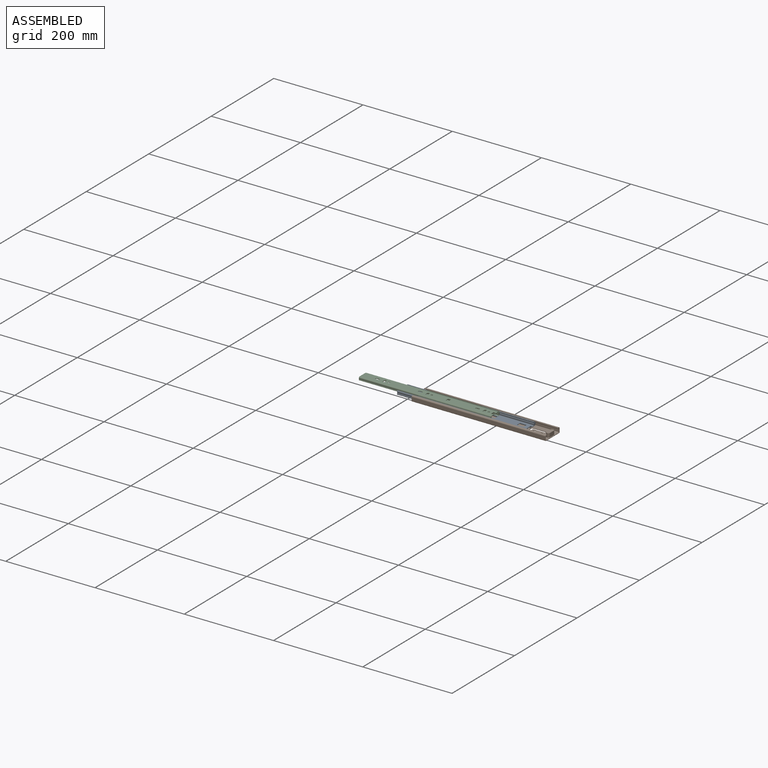
[diagram: assembled view]
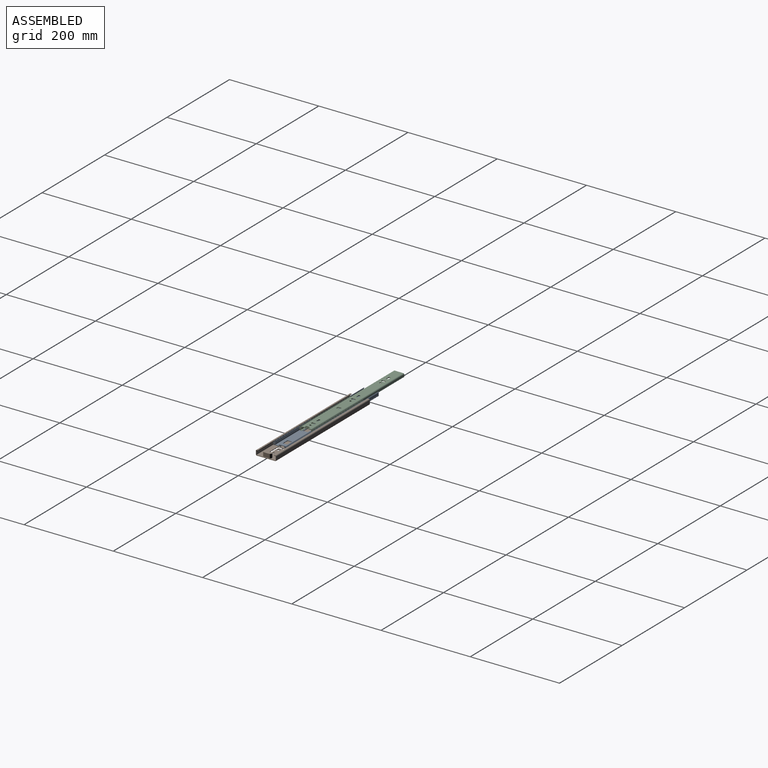
[diagram: assembled view, second angle]
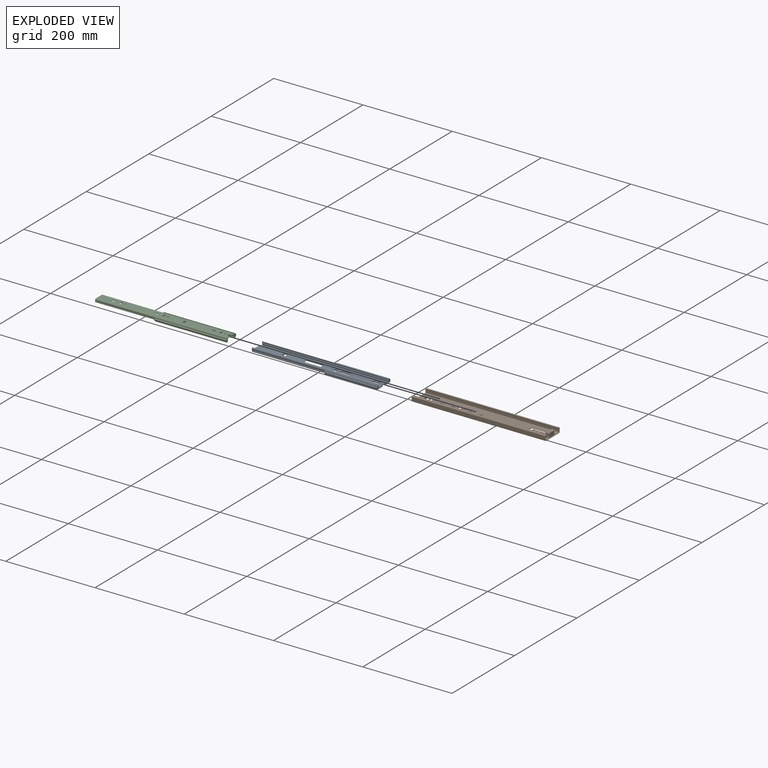
[diagram: exploded view]
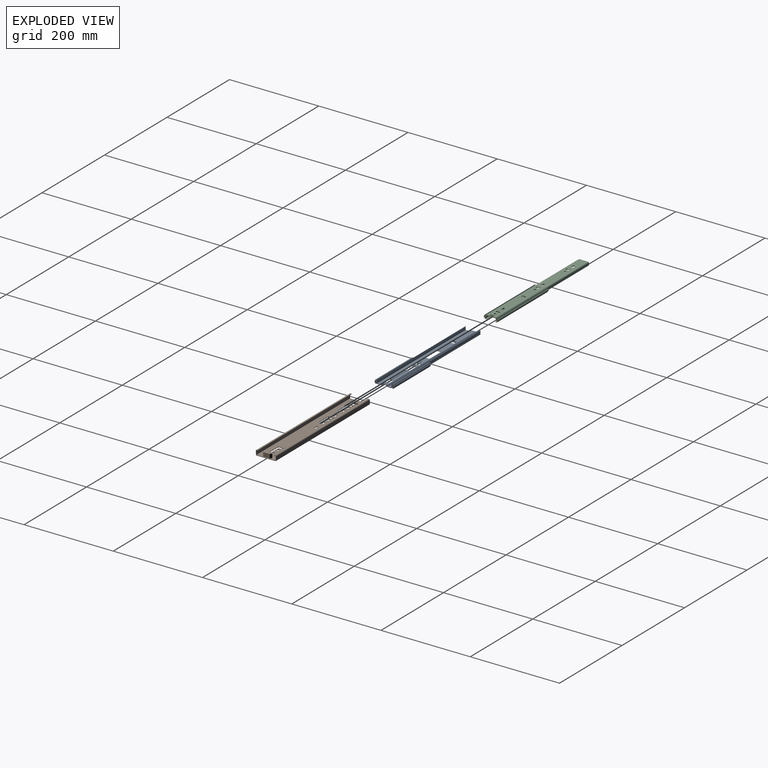
[diagram: exploded view, second angle]
ASSEMBLY  parts=3 mates=2
PART A: 94 faces, bbox 283.5x43.5x9.2 mm
  f0: plane 7.8x5mm, normal (-1,0,0), area 25.5mm2, adj f12,f13,f14,f15,f16,f17,f18,f19
  f1: plane 7.8x5mm, normal (-1,0,0), area 25.5mm2, adj f21,f22,f23,f24,f25,f26,f27,f28
  f2: plane 2.85x2mm, normal (-1,0,0), area 5.7mm2, adj f9,f10,f11,f66
  f3: plane 2.85x2mm, normal (-1,0,0), area 5.7mm2, adj f6,f7,f8,f66
  f4: plane 2x2mm, normal (1,0,0), area 4mm2, adj f63,f64,f65,f66
  f5: plane 2x2mm, normal (1,0,0), area 4mm2, adj f60,f61,f62,f66
  f6: plane 2.85x1.2mm, normal (0,-1,0), area 3.4mm2, adj f3,f7,f66,f68
  f7: plane 2x1.2mm, normal (0,0,-1), area 2.4mm2, adj f3,f6,f8,f68
  f8: plane 2.85x1.2mm, normal (0,1,0), area 3.4mm2, adj f3,f7,f66,f68
  f9: plane 2.85x1.2mm, normal (0,-1,0), area 3.4mm2, adj f2,f10,f66,f68
  f10: plane 2x1.2mm, normal (0,0,-1), area 2.4mm2, adj f2,f9,f11,f68
  f11: plane 2.85x1.2mm, normal (0,1,0), area 3.4mm2, adj f2,f10,f66,f68
  f12: cylinder r=2.5mm len=118.5mm, axis (1,0,0), area 185.9mm2, adj f0,f13,f46,f68
  f13: plane 118.5x1.61mm, normal (0,-1,0), area 190.6mm2, adj f0,f12,f14,f68
  f14: plane 118.5x2mm, normal (0,0,-1), area 237mm2, adj f0,f13,f15,f68
  f15: plane 118.5x1.61mm, normal (0,1,0), area 190.6mm2, adj f0,f14,f16,f68
  f16: cylinder r=2.5mm len=118.5mm, axis (1,0,0), area 686.9mm2, adj f0,f15,f17,f68
  f17: plane 118.5x1.61mm, normal (0,1,0), area 190.6mm2, adj f0,f16,f18,f68
  f18: plane 118.5x2mm, normal (0,0,1), area 237mm2, adj f0,f17,f19,f68
  f19: plane 118.5x1.61mm, normal (0,-1,0), area 190.6mm2, adj f0,f18,f20,f68
  f20: cylinder r=2.5mm len=118.5mm, axis (1,0,0), area 210.4mm2, adj f0,f19,f44,f68
  f21: cylinder r=2.5mm len=118.5mm, axis (1,0,0), area 210.4mm2, adj f1,f22,f57,f68
  f22: plane 118.5x1.61mm, normal (0,1,0), area 190.6mm2, adj f1,f21,f23,f68
  f23: plane 118.5x2mm, normal (0,0,1), area 237mm2, adj f1,f22,f24,f68
  f24: plane 118.5x1.61mm, normal (0,-1,0), area 190.6mm2, adj f1,f23,f25,f68
  f25: cylinder r=2.5mm len=118.5mm, axis (1,0,0), area 686.9mm2, adj f1,f24,f26,f68
  f26: plane 118.5x1.61mm, normal (0,-1,0), area 190.6mm2, adj f1,f25,f27,f68
  f27: plane 118.5x2mm, normal (0,0,-1), area 237mm2, adj f1,f26,f28,f68
  f28: plane 118.5x1.61mm, normal (0,1,0), area 190.6mm2, adj f1,f27,f29,f68
  f29: cylinder r=2.5mm len=118.5mm, axis (1,0,0), area 185.9mm2, adj f1,f28,f55,f68
  f30: plane 283.5x0.82mm, normal (0,0.77,0.64), area 304.4mm2, adj f31,f57,f68,f70
  f31: cylinder r=2.25mm len=283.5mm, axis (-1,0,0), area 932.1mm2, adj f30,f32,f68,f70
  f32: cylinder r=4mm len=283.5mm, axis (-1,0,0), area 1013.2mm2, adj f31,f33,f68,f70
  f33: cylinder r=0.46mm len=283.5mm, axis (-1,0,0), area 260.3mm2, adj f32,f34,f68,f70
  f34: plane 283.5x6.16mm, normal (0,0,1), area 1744.9mm2, adj f33,f35,f68,f70
  f35: cylinder r=1.41mm len=283.5mm, axis (-1,0,0), area 418.6mm2, adj f34,f36,f68,f70
  f36: plane 283.5x1.4mm, normal (0,-0.87,0.5), area 456.7mm2, adj f35,f67,f68,f70
  f37: plane 283.5x1.4mm, normal (0,0.87,0.5), area 456.7mm2, adj f38,f68,f69,f70
  f38: cylinder r=1.41mm len=283.5mm, axis (-1,0,0), area 418.6mm2, adj f37,f39,f68,f70
  f39: plane 283.5x6.16mm, normal (0,0,1), area 1744.9mm2, adj f38,f40,f68,f70
  f40: cylinder r=0.46mm len=283.5mm, axis (-1,0,0), area 260.3mm2, adj f39,f41,f68,f70
  f41: cylinder r=4mm len=283.5mm, axis (-1,0,0), area 1013.2mm2, adj f40,f42,f68,f70
  f42: cylinder r=2.25mm len=283.5mm, axis (-1,0,0), area 932.1mm2, adj f41,f43,f68,f70
  f43: plane 283.5x0.82mm, normal (0,-0.77,0.64), area 304.4mm2, adj f42,f44,f68,f70
  f44: cylinder r=3.31mm len=283.5mm, axis (-1,0,0), area 1337.6mm2, adj f0,f20,f43,f45,f68,f70
  f45: cylinder r=2.5mm len=165mm, axis (-1,0,0), area 397mm2, adj f0,f44,f46,f70
  f46: cylinder r=1.66mm len=283.5mm, axis (-1,0,0), area 986.6mm2, adj f0,f12,f45,f47,f68,f70
  f47: plane 283.5x6.16mm, normal (0,0,-1), area 1744.9mm2, adj f46,f48,f68,f70
  f48: cylinder r=2.61mm len=283.5mm, axis (-1,0,0), area 774.9mm2, adj f47,f49,f68,f70
  f49: plane 283.5x1.25mm, normal (0,-0.87,-0.5), area 407.6mm2, adj f48,f50,f68,f70
  f50: cylinder r=0.6mm len=283.5mm, axis (-1,0,0), area 178.1mm2, adj f49,f66,f68,f70
  f51: cylinder r=0.6mm len=283.5mm, axis (-1,0,0), area 178.1mm2, adj f52,f66,f68,f70
  f52: plane 283.5x1.25mm, normal (0,0.87,-0.5), area 407.6mm2, adj f51,f53,f68,f70
  f53: cylinder r=2.61mm len=283.5mm, axis (-1,0,0), area 774.9mm2, adj f52,f54,f68,f70
  f54: plane 283.5x6.16mm, normal (0,0,-1), area 1744.9mm2, adj f53,f55,f68,f70
  f55: cylinder r=1.66mm len=283.5mm, axis (-1,0,0), area 982.8mm2, adj f29,f54,f56,f68,f70
  f56: cylinder r=2.5mm len=165mm, axis (-1,0,0), area 400.8mm2, adj f1,f55,f57,f70
  f57: cylinder r=3.31mm len=283.5mm, axis (-1,0,0), area 1337.6mm2, adj f1,f21,f30,f56,f68,f70
  f58: plane 8x2.8mm, normal (1,0,0), area 22.4mm2, adj f59,f66,f71,f72,f74,f75
  f59: plane 8x1.2mm, normal (0,0,1), area 9.6mm2, adj f58,f71,f75,f76
  f60: plane 2x1mm, normal (0,1,0), area 2mm2, adj f5,f61,f66,f78
  f61: plane 2x1mm, normal (0,0,-1), area 2mm2, adj f5,f60,f62,f78
  f62: plane 2x1mm, normal (0,-1,0), area 2mm2, adj f5,f61,f66,f78
  f63: plane 2x1mm, normal (0,1,0), area 2mm2, adj f4,f64,f66,f78
  f64: plane 2x1mm, normal (0,0,-1), area 2mm2, adj f4,f63,f65,f78
  f65: plane 2x1mm, normal (0,-1,0), area 2mm2, adj f4,f64,f66,f78
  f66: plane 283.5x12.01mm, normal (0,0,-1), area 2525.2mm2, adj f2,f3,f4,f5,f6,f8,f9,f11
  f67: cylinder r=1.5mm len=283.5mm, axis (-1,0,0), area 445.3mm2, adj f36,f68,f70,f93
  f68: plane 43.5x9.15mm, normal (1,0,0), area 123.6mm2, adj f6,f7,f8,f9,f10,f11,f12,f13
  f69: cylinder r=1.5mm len=283.5mm, axis (-1,0,0), area 445.3mm2, adj f37,f68,f70,f93
  f70: plane 34.63x9mm, normal (-1,0,0), area 61.2mm2, adj f30,f31,f32,f33,f34,f35,f36,f37
  f71: plane 1.6x1.2mm, normal (0,1,0), area 1.9mm2, adj f58,f59,f76,f93
  f72: plane 6x1.2mm, normal (0,-1,0), area 7.2mm2, adj f58,f66,f73,f93
  f73: plane 8x1.2mm, normal (-1,0,0), area 9.6mm2, adj f66,f72,f74,f93
  f74: plane 6x1.2mm, normal (0,1,0), area 7.2mm2, adj f58,f66,f73,f93
  f75: plane 1.6x1.2mm, normal (0,-1,0), area 1.9mm2, adj f58,f59,f76,f93
  f76: plane 8x1.6mm, normal (-1,0,0), area 12.8mm2, adj f59,f71,f75,f93
  f77: plane 6x1.2mm, normal (0,-1,0), area 7.2mm2, adj f66,f78,f80,f93
  f78: plane 12x3.2mm, normal (-1,0,0), area 22.4mm2, adj f60,f61,f62,f63,f64,f65,f66,f77
  f79: plane 6x1.2mm, normal (0,1,0), area 7.2mm2, adj f66,f78,f80,f93
  f80: plane 12x1.2mm, normal (1,0,0), area 14.4mm2, adj f66,f77,f79,f93
  f81: plane 22x1.2mm, normal (0,-1,0), area 26.4mm2, adj f66,f82,f84,f93
  f82: plane 10x1.2mm, normal (-1,0,0), area 12mm2, adj f66,f81,f83,f93
  f83: plane 22x1.2mm, normal (0,1,0), area 26.4mm2, adj f66,f82,f84,f93
  f84: plane 10x1.2mm, normal (1,0,0), area 12mm2, adj f66,f81,f83,f93
  f85: plane 38x1.2mm, normal (0,-1,0), area 45.6mm2, adj f66,f86,f88,f93
  f86: plane 10x1.2mm, normal (-1,0,0), area 12mm2, adj f66,f85,f87,f93
  f87: plane 38x1.2mm, normal (0,1,0), area 45.6mm2, adj f66,f86,f88,f93
  f88: plane 10x1.2mm, normal (1,0,0), area 12mm2, adj f66,f85,f87,f93
  f89: plane 15x1.2mm, normal (0,-1,0), area 18mm2, adj f66,f90,f92,f93
  f90: plane 10x1.2mm, normal (-1,0,0), area 12mm2, adj f66,f89,f91,f93
  f91: plane 15x1.2mm, normal (0,1,0), area 18mm2, adj f66,f90,f92,f93
  f92: plane 10x1.2mm, normal (1,0,0), area 12mm2, adj f66,f89,f91,f93
  f93: plane 283.5x12.35mm, normal (0,0,1), area 2622.6mm2, adj f67,f68,f69,f70,f71,f72,f73,f74
PART B: 95 faces, bbox 300x45.4x11.5 mm
  f0: plane 19.5x8mm, normal (0,0,1), area 142.3mm2, adj f22,f23,f24,f25
  f1: plane 300x2.7mm, normal (0,0,1), area 810mm2, adj f2,f17,f29,f31
  f2: cylinder r=2mm len=300mm, axis (-1,0,0), area 942.5mm2, adj f1,f18,f29,f31
  f3: plane 300x7.5mm, normal (0,1,0), area 2250mm2, adj f4,f29,f30,f31
  f4: cylinder r=2mm len=300mm, axis (-1,0,0), area 942.5mm2, adj f3,f5,f29,f31
  f5: plane 300x2.7mm, normal (0,0,1), area 810mm2, adj f4,f6,f29,f31
  f6: plane 300x1.2mm, normal (0,-1,0), area 360mm2, adj f5,f7,f29,f31
  f7: plane 300x2.7mm, normal (0,0,-1), area 810mm2, adj f6,f8,f29,f31
  f8: cylinder r=0.8mm len=300mm, axis (-1,0,0), area 377mm2, adj f7,f9,f29,f31
  f9: plane 300x2.66mm, normal (0,-1,0), area 798.1mm2, adj f8,f10,f29,f31
  f10: cylinder r=2.5mm len=300mm, axis (-1,0,0), area 676.5mm2, adj f9,f11,f29,f31
  f11: plane 300x2.66mm, normal (0,-1,0), area 798.1mm2, adj f10,f21,f29,f31
  f12: plane 300x2.66mm, normal (0,1,0), area 798.1mm2, adj f13,f20,f29,f31
  f13: cylinder r=2.5mm len=300mm, axis (-1,0,0), area 676.5mm2, adj f12,f14,f29,f31
  f14: plane 300x2.66mm, normal (0,1,0), area 798.1mm2, adj f13,f15,f29,f31
  f15: cylinder r=0.8mm len=300mm, axis (-1,0,0), area 377mm2, adj f14,f16,f29,f31
  f16: plane 300x2.7mm, normal (0,0,-1), area 810mm2, adj f15,f17,f29,f31
  f17: plane 300x1.2mm, normal (0,1,0), area 360mm2, adj f1,f16,f29,f31
  f18: plane 300x7.5mm, normal (0,-1,0), area 2250mm2, adj f2,f29,f31,f32
  f19: plane 12x1.2mm, normal (0,0,1), area 14.4mm2, adj f26,f27,f28,f87
  f20: cylinder r=0.8mm len=300mm, axis (-1,0,0), area 377mm2, adj f12,f29,f31,f91
  f21: cylinder r=0.8mm len=300mm, axis (-1,0,0), area 377mm2, adj f11,f29,f31,f91
  f22: plane 11.5x9mm, normal (-1,0,0), area 103.5mm2, adj f0,f23,f25,f91
  f23: cylinder r=4mm len=9mm, axis (0,0,-1), area 113.1mm2, adj f0,f22,f24,f91
  f24: plane 11.5x9mm, normal (1,0,0), area 103.5mm2, adj f0,f23,f25,f91
  f25: cylinder r=4mm len=9mm, axis (0,0,-1), area 113.1mm2, adj f0,f22,f24,f91
  f26: plane 2.65x1.2mm, normal (0,-1,0), area 3.2mm2, adj f19,f27,f87,f91
  f27: plane 12x2.65mm, normal (-1,0,0), area 31.8mm2, adj f19,f26,f28,f91
  f28: plane 2.65x1.2mm, normal (0,1,0), area 3.2mm2, adj f19,f27,f87,f91
  f29: plane 45.4x11.5mm, normal (-1,0,0), area 84mm2, adj f1,f2,f3,f4,f5,f6,f7,f8
  f30: cylinder r=2mm len=300mm, axis (-1,0,0), area 942.5mm2, adj f3,f29,f31,f92
  f31: plane 45.4x11.5mm, normal (1,0,0), area 84mm2, adj f1,f2,f3,f4,f5,f6,f7,f8
  f32: cylinder r=2mm len=300mm, axis (-1,0,0), area 942.5mm2, adj f18,f29,f31,f92
  f33: plane 4.8x1.2mm, normal (0,1,0), area 5.8mm2, adj f90,f91,f92,f94
  f34: plane 4.8x1.2mm, normal (0,-1,0), area 5.8mm2, adj f35,f37,f91,f92
  f35: cylinder r=2.25mm len=4.5mm, axis (0,0,-1), area 8.5mm2, adj f34,f36,f91,f92
  f36: plane 4.8x1.2mm, normal (0,1,0), area 5.8mm2, adj f35,f37,f91,f92
  f37: cylinder r=2.25mm len=4.5mm, axis (0,0,-1), area 8.5mm2, adj f34,f36,f91,f92
  f38: cylinder r=2.25mm len=4.5mm, axis (0,0,-1), area 17mm2, adj f91,f92
  f39: plane 4.8x1.2mm, normal (0,-1,0), area 5.8mm2, adj f40,f42,f91,f92
  f40: cylinder r=2.25mm len=4.5mm, axis (0,0,-1), area 8.5mm2, adj f39,f41,f91,f92
  f41: plane 4.8x1.2mm, normal (0,1,0), area 5.8mm2, adj f40,f42,f91,f92
  f42: cylinder r=2.25mm len=4.5mm, axis (0,0,-1), area 8.5mm2, adj f39,f41,f91,f92
  f43: plane 4.8x1.2mm, normal (0,-1,0), area 5.8mm2, adj f44,f46,f91,f92
  f44: cylinder r=2.25mm len=4.5mm, axis (0,0,-1), area 8.5mm2, adj f43,f45,f91,f92
  f45: plane 4.8x1.2mm, normal (0,1,0), area 5.8mm2, adj f44,f46,f91,f92
  f46: cylinder r=2.25mm len=4.5mm, axis (0,0,-1), area 8.5mm2, adj f43,f45,f91,f92
  f47: cylinder r=3.15mm len=6.3mm, axis (0,0,-1), area 23.8mm2, adj f91,f92
  f48: cylinder r=3.15mm len=6.3mm, axis (0,0,-1), area 23.8mm2, adj f91,f92
  f49: cylinder r=3.15mm len=6.3mm, axis (0,0,-1), area 23.8mm2, adj f91,f92
  f50: plane 14x1.2mm, normal (1,0,0), area 16.8mm2, adj f51,f61,f91,f92
  f51: cylinder r=2.5mm len=2.5mm, axis (0,0,-1), area 4.7mm2, adj f50,f52,f91,f92
  f52: plane 28x1.2mm, normal (0,1,0), area 33.6mm2, adj f51,f53,f91,f92
  f53: cylinder r=1.92mm len=3.84mm, axis (0,0,-1), area 7.2mm2, adj f52,f54,f91,f92
  f54: plane 24.08x1.2mm, normal (0,-1,0), area 28.9mm2, adj f53,f55,f91,f92
  f55: cylinder r=1.92mm len=1.92mm, axis (0,0,-1), area 3.6mm2, adj f54,f56,f91,f92
  f56: plane 7.48x1.2mm, normal (-1,0,0), area 9mm2, adj f55,f57,f91,f92
  f57: cylinder r=1.92mm len=1.92mm, axis (0,0,-1), area 3.6mm2, adj f56,f58,f91,f92
  f58: plane 24.08x1.2mm, normal (0,1,0), area 28.9mm2, adj f57,f59,f91,f92
  f59: cylinder r=1.92mm len=3.84mm, axis (0,0,-1), area 7.2mm2, adj f58,f60,f91,f92
  f60: plane 28x1.2mm, normal (0,-1,0), area 33.6mm2, adj f59,f61,f91,f92
  f61: cylinder r=2.5mm len=2.5mm, axis (0,0,-1), area 4.7mm2, adj f50,f60,f91,f92
  f62: plane 14x1.2mm, normal (1,0,0), area 16.8mm2, adj f63,f73,f91,f92
  f63: cylinder r=2.5mm len=2.5mm, axis (0,0,-1), area 4.7mm2, adj f62,f64,f91,f92
  f64: plane 28x1.2mm, normal (0,1,0), area 33.6mm2, adj f63,f65,f91,f92
  f65: cylinder r=1.92mm len=3.84mm, axis (0,0,-1), area 7.2mm2, adj f64,f66,f91,f92
  f66: plane 24.08x1.2mm, normal (0,-1,0), area 28.9mm2, adj f65,f67,f91,f92
  f67: cylinder r=1.92mm len=1.92mm, axis (0,0,-1), area 3.6mm2, adj f66,f68,f91,f92
  f68: plane 7.48x1.2mm, normal (-1,0,0), area 9mm2, adj f67,f69,f91,f92
  f69: cylinder r=1.92mm len=1.92mm, axis (0,0,-1), area 3.6mm2, adj f68,f70,f91,f92
  f70: plane 24.08x1.2mm, normal (0,1,0), area 28.9mm2, adj f69,f71,f91,f92
  f71: cylinder r=1.92mm len=3.84mm, axis (0,0,-1), area 7.2mm2, adj f70,f72,f91,f92
  f72: plane 28x1.2mm, normal (0,-1,0), area 33.6mm2, adj f71,f73,f91,f92
  f73: cylinder r=2.5mm len=2.5mm, axis (0,0,-1), area 4.7mm2, adj f62,f72,f91,f92
  f74: plane 14x1.2mm, normal (1,0,0), area 16.8mm2, adj f75,f85,f91,f92
  f75: cylinder r=2.5mm len=2.5mm, axis (0,0,-1), area 4.7mm2, adj f74,f76,f91,f92
  f76: plane 28x1.2mm, normal (0,1,0), area 33.6mm2, adj f75,f77,f91,f92
  f77: cylinder r=1.92mm len=3.84mm, axis (0,0,-1), area 7.2mm2, adj f76,f78,f91,f92
  f78: plane 24.08x1.2mm, normal (0,-1,0), area 28.9mm2, adj f77,f79,f91,f92
  f79: cylinder r=1.92mm len=1.92mm, axis (0,0,-1), area 3.6mm2, adj f78,f80,f91,f92
  f80: plane 7.48x1.2mm, normal (-1,0,0), area 9mm2, adj f79,f81,f91,f92
  f81: cylinder r=1.92mm len=1.92mm, axis (0,0,-1), area 3.6mm2, adj f80,f82,f91,f92
  f82: plane 24.08x1.2mm, normal (0,1,0), area 28.9mm2, adj f81,f83,f91,f92
  f83: cylinder r=1.92mm len=3.84mm, axis (0,0,-1), area 7.2mm2, adj f82,f84,f91,f92
  f84: plane 28x1.2mm, normal (0,-1,0), area 33.6mm2, adj f83,f85,f91,f92
  f85: cylinder r=2.5mm len=2.5mm, axis (0,0,-1), area 4.7mm2, adj f74,f84,f91,f92
  f86: plane 6x1.2mm, normal (0,-1,0), area 7.2mm2, adj f87,f89,f91,f92
  f87: plane 12x3.85mm, normal (1,0,0), area 46.2mm2, adj f19,f26,f28,f86,f88,f92
  f88: plane 6x1.2mm, normal (0,1,0), area 7.2mm2, adj f87,f89,f91,f92
  f89: plane 12x1.2mm, normal (-1,0,0), area 14.4mm2, adj f86,f88,f91,f92
  f90: cylinder r=2.25mm len=4.5mm, axis (0,0,-1), area 8.5mm2, adj f33,f91,f92,f93
  f91: plane 300x41.4mm, normal (0,0,1), area 11044.9mm2, adj f20,f21,f22,f23,f24,f25,f26,f27
  f92: plane 300x41.4mm, normal (0,0,-1), area 11201.6mm2, adj f29,f30,f31,f32,f33,f34,f35,f36
  f93: plane 4.8x1.2mm, normal (0,-1,0), area 5.8mm2, adj f90,f91,f92,f94
  f94: cylinder r=2.25mm len=4.5mm, axis (0,0,-1), area 8.5mm2, adj f33,f91,f92,f93
PART C: 105 faces, bbox 296.5x32.5x9 mm
  f0: plane 25x15.97mm, normal (0,0,1), area 399.2mm2, adj f1,f8,f10,f16
  f1: cylinder r=1mm len=25mm, axis (-1,0,0), area 34.9mm2, adj f0,f2,f10,f16
  f2: plane 25x2.19mm, normal (0,-0.98,0.17), area 55.7mm2, adj f1,f10,f12,f16
  f3: plane 25x2.19mm, normal (0,0.98,-0.17), area 55.7mm2, adj f4,f10,f11,f16
  f4: cylinder r=0.4mm len=25mm, axis (-1,0,0), area 14mm2, adj f3,f5,f10,f16
  f5: plane 25x15.97mm, normal (0,0,-1), area 399.2mm2, adj f4,f6,f10,f16
  f6: cylinder r=0.4mm len=25mm, axis (-1,0,0), area 14mm2, adj f5,f9,f10,f16
  f7: plane 25x2.19mm, normal (0,0.98,0.17), area 55.7mm2, adj f8,f10,f15,f16
  f8: cylinder r=1mm len=25mm, axis (-1,0,0), area 34.9mm2, adj f0,f7,f10,f16
  f9: plane 25x2.19mm, normal (0,-0.98,-0.17), area 55.7mm2, adj f6,f10,f16,f17
  f10: plane 19.5x3.95mm, normal (-1,0,0), area 14.6mm2, adj f0,f1,f2,f3,f4,f5,f6,f7
  f11: cylinder r=1mm len=25mm, axis (-1,0,0), area 34.9mm2, adj f3,f10,f16,f28
  f12: cylinder r=0.4mm len=25mm, axis (-1,0,0), area 14mm2, adj f2,f10,f16,f30
  f13: plane 68.25x0.6mm, normal (0,1,0), area 40.9mm2, adj f10,f14,f28,f30
  f14: plane 8.3x6.5mm, normal (-1,0,0), area 20.2mm2, adj f13,f20,f21,f22,f23,f24,f25,f26
  f15: cylinder r=0.4mm len=25mm, axis (-1,0,0), area 14mm2, adj f7,f10,f16,f43
  f16: plane 19.5x3.95mm, normal (1,0,0), area 14.6mm2, adj f0,f1,f2,f3,f4,f5,f6,f7
  f17: cylinder r=1mm len=25mm, axis (-1,0,0), area 34.9mm2, adj f9,f10,f16,f45
  f18: plane 68.25x0.6mm, normal (0,-1,0), area 40.9mm2, adj f10,f19,f43,f45
  f19: plane 8.3x6.5mm, normal (-1,0,0), area 20.2mm2, adj f18,f39,f40,f41,f42,f43,f45,f46
  f20: cylinder r=2.25mm len=135mm, axis (-1,0,0), area 298.3mm2, adj f14,f34,f64,f65
  f21: cylinder r=2.25mm len=161.5mm, axis (1,0,0), area 401.8mm2, adj f14,f22,f65,f66
  f22: plane 161.5x1.5mm, normal (0,1,0.09), area 243.1mm2, adj f14,f21,f23,f66
  f23: plane 161.5x0.6mm, normal (0,-0.09,1), area 96.9mm2, adj f14,f22,f24,f66
  f24: plane 161.5x1.51mm, normal (0,-1,-0.09), area 244.2mm2, adj f14,f23,f25,f66
  f25: cylinder r=2.25mm len=161.5mm, axis (1,0,0), area 1038.9mm2, adj f14,f24,f26,f66
  f26: plane 161.5x1.39mm, normal (0,-1,-0.09), area 225.4mm2, adj f14,f25,f27,f66
  f27: cylinder r=1mm len=161.5mm, axis (1,0,0), area 239.6mm2, adj f14,f26,f28,f66
  f28: plane 161.5x3.25mm, normal (0,0,-1), area 525.5mm2, adj f11,f13,f14,f27,f29,f66
  f29: plane 68.25x0.6mm, normal (0,1,0), area 40.9mm2, adj f16,f28,f30,f66
  f30: plane 161.5x3.25mm, normal (0,0,1), area 525.5mm2, adj f12,f13,f14,f29,f31,f66
  f31: cylinder r=0.4mm len=161.5mm, axis (1,0,0), area 95.8mm2, adj f14,f30,f32,f66
  f32: plane 161.5x1.38mm, normal (0,1,0.09), area 224.4mm2, adj f14,f31,f33,f66
  f33: cylinder r=2.25mm len=161.5mm, axis (1,0,0), area 280.2mm2, adj f14,f32,f34,f66
  f34: plane 296.5x1.01mm, normal (0,-1,0), area 297.8mm2, adj f14,f20,f33,f35,f64,f66
  f35: plane 296.5x0.81mm, normal (0,0,-1), area 239mm2, adj f34,f36,f64,f66
  f36: cylinder r=3.5mm len=296.5mm, axis (-1,0,0), area 1125.6mm2, adj f35,f57,f64,f66
  f37: cylinder r=3.5mm len=296.5mm, axis (-1,0,0), area 1125.6mm2, adj f38,f56,f64,f66
  f38: plane 296.5x0.81mm, normal (0,0,-1), area 239mm2, adj f37,f39,f64,f66
  f39: plane 296.5x1.01mm, normal (0,1,0), area 297.8mm2, adj f19,f38,f40,f53,f64,f66
  f40: cylinder r=2.25mm len=161.5mm, axis (1,0,0), area 280.2mm2, adj f19,f39,f41,f66
  f41: plane 161.5x1.38mm, normal (0,-1,0.09), area 224.4mm2, adj f19,f40,f42,f66
  f42: cylinder r=0.4mm len=161.5mm, axis (1,0,0), area 95.8mm2, adj f19,f41,f43,f66
  f43: plane 161.5x3.25mm, normal (0,0,1), area 525.5mm2, adj f15,f18,f19,f42,f44,f66
  f44: plane 68.25x0.6mm, normal (0,-1,0), area 40.9mm2, adj f16,f43,f45,f66
  f45: plane 161.5x3.25mm, normal (0,0,-1), area 525.5mm2, adj f17,f18,f19,f44,f46,f66
  f46: cylinder r=1mm len=161.5mm, axis (1,0,0), area 239.6mm2, adj f19,f45,f47,f66
  f47: plane 161.5x1.39mm, normal (0,1,-0.09), area 225.4mm2, adj f19,f46,f48,f66
  f48: cylinder r=2.25mm len=161.5mm, axis (1,0,0), area 1038.9mm2, adj f19,f47,f49,f66
  f49: plane 161.5x1.51mm, normal (0,1,-0.09), area 244.2mm2, adj f19,f48,f50,f66
  f50: plane 161.5x0.6mm, normal (0,0.09,1), area 96.9mm2, adj f19,f49,f51,f66
  f51: plane 161.5x1.5mm, normal (0,-1,0.09), area 243.1mm2, adj f19,f50,f52,f66
  f52: cylinder r=2.25mm len=161.5mm, axis (1,0,0), area 401.8mm2, adj f19,f51,f66,f67
  f53: cylinder r=2.25mm len=135mm, axis (-1,0,0), area 298.3mm2, adj f19,f39,f64,f67
  f54: plane 8x1.4mm, normal (0,0,-1), area 11.2mm2, adj f58,f59,f60,f74
  f55: plane 8x1.4mm, normal (0,0,-1), area 11.2mm2, adj f61,f62,f63,f78
  f56: cylinder r=1.25mm len=296.5mm, axis (-1,0,0), area 728.6mm2, adj f37,f64,f66,f101
  f57: cylinder r=1.25mm len=296.5mm, axis (-1,0,0), area 728.6mm2, adj f36,f64,f66,f101
  f58: plane 3.1x1.4mm, normal (0,1,0), area 4.3mm2, adj f54,f59,f74,f101
  f59: plane 8x3.1mm, normal (-1,0,0), area 24.8mm2, adj f54,f58,f60,f101
  f60: plane 3.1x1.4mm, normal (0,-1,0), area 4.3mm2, adj f54,f59,f74,f101
  f61: plane 8x4.65mm, normal (1,0,0), area 37.2mm2, adj f55,f62,f63,f101
  f62: plane 4.65x1.4mm, normal (0,1,0), area 6.5mm2, adj f55,f61,f78,f101
  f63: plane 4.65x1.4mm, normal (0,-1,0), area 6.5mm2, adj f55,f61,f78,f101
  f64: plane 24.25x6.7mm, normal (-1,0,0), area 45.1mm2, adj f20,f34,f35,f36,f37,f38,f39,f53
  f65: cylinder r=2.58mm len=296.5mm, axis (-1,0,0), area 1495.7mm2, adj f14,f20,f21,f64,f66,f102
  f66: plane 32.5x9mm, normal (1,0,0), area 85.5mm2, adj f21,f22,f23,f24,f25,f26,f27,f28
  f67: cylinder r=2.58mm len=296.5mm, axis (-1,0,0), area 1495.7mm2, adj f19,f52,f53,f64,f66,f102
  f68: cylinder r=2.25mm len=4.5mm, axis (0,0,1), area 19.8mm2, adj f101,f102
  f69: cylinder r=2.25mm len=4.5mm, axis (0,0,1), area 9.9mm2, adj f70,f72,f101,f102
  f70: plane 4.8x1.4mm, normal (1,0,0), area 6.7mm2, adj f69,f71,f101,f102
  f71: cylinder r=2.25mm len=4.5mm, axis (0,0,1), area 9.9mm2, adj f70,f72,f101,f102
  f72: plane 4.8x1.4mm, normal (-1,0,0), area 6.7mm2, adj f69,f71,f101,f102
  f73: plane 4.8x1.4mm, normal (0,1,0), area 6.7mm2, adj f100,f101,f102,f104
  f74: plane 8x4.5mm, normal (1,0,0), area 36mm2, adj f54,f58,f60,f75,f77,f102
  f75: plane 5x1.4mm, normal (0,-1,0), area 7mm2, adj f74,f76,f101,f102
  f76: plane 8x1.4mm, normal (-1,0,0), area 11.2mm2, adj f75,f77,f101,f102
  f77: plane 5x1.4mm, normal (0,1,0), area 7mm2, adj f74,f76,f101,f102
  f78: plane 8x6.05mm, normal (-1,0,0), area 48.4mm2, adj f55,f62,f63,f79,f81,f102
  f79: plane 6x1.4mm, normal (0,1,0), area 8.4mm2, adj f78,f80,f101,f102
  f80: plane 8x1.4mm, normal (1,0,0), area 11.2mm2, adj f79,f81,f101,f102
  f81: plane 6x1.4mm, normal (0,-1,0), area 8.4mm2, adj f78,f80,f101,f102
  f82: cylinder r=2.25mm len=4.5mm, axis (0,0,1), area 19.8mm2, adj f101,f102
  f83: cylinder r=2.25mm len=4.5mm, axis (0,0,1), area 9.9mm2, adj f84,f86,f101,f102
  f84: plane 4.8x1.4mm, normal (1,0,0), area 6.7mm2, adj f83,f85,f101,f102
  f85: cylinder r=2.25mm len=4.5mm, axis (0,0,1), area 9.9mm2, adj f84,f86,f101,f102
  f86: plane 4.8x1.4mm, normal (-1,0,0), area 6.7mm2, adj f83,f85,f101,f102
  f87: cylinder r=2.25mm len=4.5mm, axis (0,0,1), area 9.9mm2, adj f88,f90,f101,f102
  f88: plane 4.8x1.4mm, normal (0,-1,0), area 6.7mm2, adj f87,f89,f101,f102
  f89: cylinder r=2.25mm len=4.5mm, axis (0,0,1), area 9.9mm2, adj f88,f90,f101,f102
  f90: plane 4.8x1.4mm, normal (0,1,0), area 6.7mm2, adj f87,f89,f101,f102
  f91: cylinder r=2.25mm len=4.5mm, axis (0,0,1), area 19.8mm2, adj f101,f102
  f92: cylinder r=2.25mm len=4.5mm, axis (0,0,1), area 9.9mm2, adj f93,f95,f101,f102
  f93: plane 4.8x1.4mm, normal (1,0,0), area 6.7mm2, adj f92,f94,f101,f102
  f94: cylinder r=2.25mm len=4.5mm, axis (0,0,1), area 9.9mm2, adj f93,f95,f101,f102
  f95: plane 4.8x1.4mm, normal (-1,0,0), area 6.7mm2, adj f92,f94,f101,f102
  f96: cylinder r=2.25mm len=4.5mm, axis (0,0,1), area 9.9mm2, adj f97,f99,f101,f102
  f97: plane 4.8x1.4mm, normal (0,-1,0), area 6.7mm2, adj f96,f98,f101,f102
  f98: cylinder r=2.25mm len=4.5mm, axis (0,0,1), area 9.9mm2, adj f97,f99,f101,f102
  f99: plane 4.8x1.4mm, normal (0,1,0), area 6.7mm2, adj f96,f98,f101,f102
  f100: cylinder r=2.25mm len=4.5mm, axis (0,0,1), area 9.9mm2, adj f73,f101,f102,f103
  f101: plane 296.5x19.21mm, normal (0,0,-1), area 5312.2mm2, adj f56,f57,f58,f59,f60,f61,f62,f63
  f102: plane 296.5x19.08mm, normal (0,0,1), area 5297.5mm2, adj f64,f65,f66,f67,f68,f69,f70,f71
  f103: plane 4.8x1.4mm, normal (0,-1,0), area 6.7mm2, adj f100,f101,f102,f104
  f104: cylinder r=2.25mm len=4.5mm, axis (0,0,1), area 9.9mm2, adj f73,f101,f102,f103
PLACE A t=(-15.86,6.56,12.84)mm
PLACE B t=(20.53,6.56,10.92)mm fixed
PLACE C t=(-105.12,6.56,23.54)mm
MATE slider C.f66 <-> A.f70  axis (1,0,0) through (191.38,6.56,22.14)mm
MATE slider B.f29 <-> A.f70  axis (-1,0,0) through (20.53,6.56,12.12)mm
